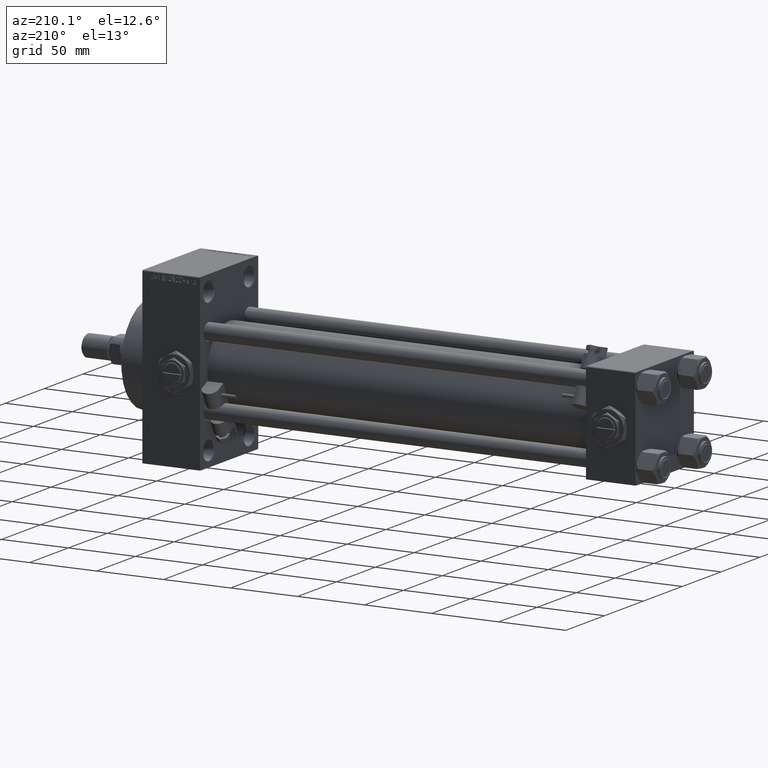
[diagram: clean part render]
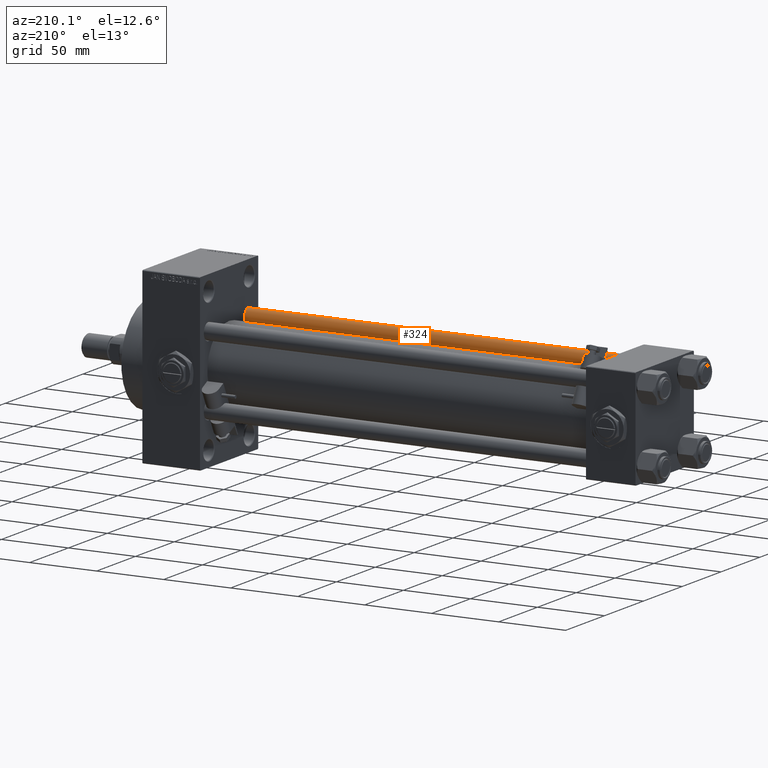
[diagram: same view with one face highlighted and labeled with its STEP entity id]
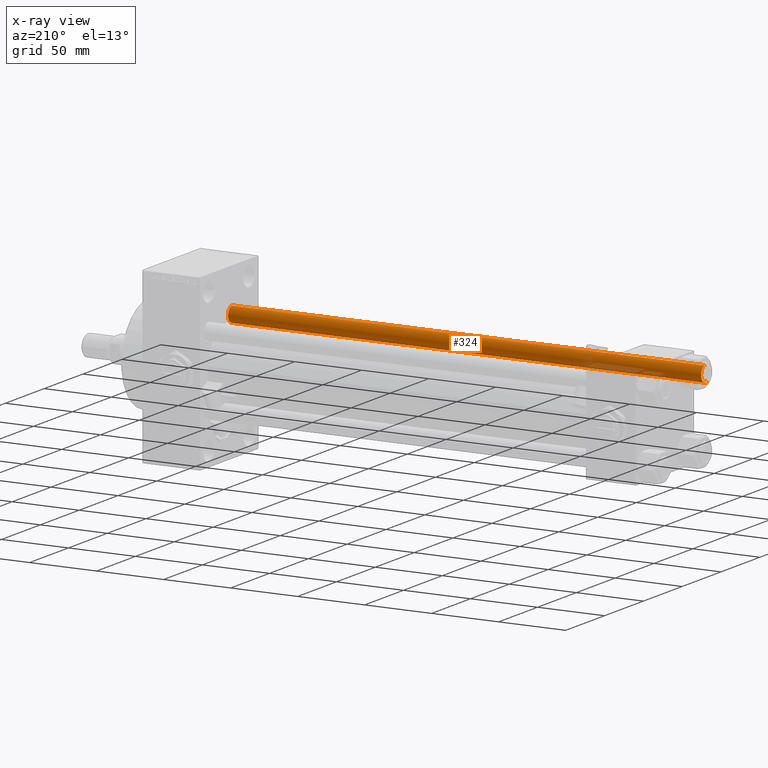
[diagram: x-ray of the same camera — body ghosted, the highlighted face saturated]
A machine part, auxiliary view. The second image highlights one B-rep face of the part: STEP entity #324.
The next image is the same camera in x-ray: the body ghosted, the highlighted face saturated — about 7% of this face is hidden behind the body in this view.
In plain terms, the highlighted cylindrical surface (edge-blend (fillet) strip) has radius 6 mm, axis along (1, 0, 0).
Its self-contained STEP definition (entity closure, byte-faithful):
#38 = VECTOR ( 'NONE', #30073, 1000.000000000000000 ) ;
#324 = ADVANCED_FACE ( 'NONE', ( #20445 ), #36435, .T. ) ;
#1281 = VERTEX_POINT ( 'NONE', #50637 ) ;
#1511 = AXIS2_PLACEMENT_3D ( 'NONE', #24073, #32833, #40567 ) ;
#1859 = CARTESIAN_POINT ( 'NONE',  ( -6.000000000000000888, 0.000000000000000000, 0.5000000000000559552 ) ) ;
#3008 = CIRCLE ( 'NONE', #22751, 6.000000000000000888 ) ;
#4679 = CIRCLE ( 'NONE', #11284, 6.000000000000000888 ) ;
#6380 = CARTESIAN_POINT ( 'NONE',  ( 0.000000000000000000, 0.000000000000000000, 353.5000000000000000 ) ) ;
#7407 = CARTESIAN_POINT ( 'NONE',  ( 6.000000000000000888, 7.347880794884120722E-16, 0.5000000000000559552 ) ) ;
#7541 = CARTESIAN_POINT ( 'NONE',  ( -6.000000000000000888, 0.000000000000000000, 353.5000000000000000 ) ) ;
#9308 = LINE ( 'NONE', #17320, #26511 ) ;
#11284 = AXIS2_PLACEMENT_3D ( 'NONE', #6380, #22132, #34003 ) ;
#12037 = CARTESIAN_POINT ( 'NONE',  ( 0.000000000000000000, 0.000000000000000000, 0.5000000000000559552 ) ) ;
#13214 = VERTEX_POINT ( 'NONE', #7407 ) ;
#13993 = EDGE_CURVE ( 'NONE', #24059, #13214, #3008, .T. ) ;
#15274 = ORIENTED_EDGE ( 'NONE', *, *, #29261, .T. ) ;
#17320 = CARTESIAN_POINT ( 'NONE',  ( -6.000000000000000888, 0.000000000000000000, 354.0000000000000000 ) ) ;
#20445 = FACE_OUTER_BOUND ( 'NONE', #27366, .T. ) ;
#22132 = DIRECTION ( 'NONE',  ( 0.000000000000000000, 0.000000000000000000, -1.000000000000000000 ) ) ;
#22751 = AXIS2_PLACEMENT_3D ( 'NONE', #12037, #39385, #27783 ) ;
#24059 = VERTEX_POINT ( 'NONE', #1859 ) ;
#24073 = CARTESIAN_POINT ( 'NONE',  ( 0.000000000000000000, 0.000000000000000000, 354.0000000000000000 ) ) ;
#26511 = VECTOR ( 'NONE', #33306, 1000.000000000000000 ) ;
#27322 = EDGE_CURVE ( 'NONE', #1281, #13214, #49656, .T. ) ;
#27366 = EDGE_LOOP ( 'NONE', ( #36985, #29061, #15274, #45134 ) ) ;
#27783 = DIRECTION ( 'NONE',  ( 1.000000000000000000, 0.000000000000000000, 0.000000000000000000 ) ) ;
#29061 = ORIENTED_EDGE ( 'NONE', *, *, #47005, .T. ) ;
#29261 = EDGE_CURVE ( 'NONE', #39156, #24059, #9308, .T. ) ;
#30073 = DIRECTION ( 'NONE',  ( -0.000000000000000000, -0.000000000000000000, -1.000000000000000000 ) ) ;
#32833 = DIRECTION ( 'NONE',  ( -0.000000000000000000, -0.000000000000000000, -1.000000000000000000 ) ) ;
#33306 = DIRECTION ( 'NONE',  ( -0.000000000000000000, -0.000000000000000000, -1.000000000000000000 ) ) ;
#34003 = DIRECTION ( 'NONE',  ( 1.000000000000000000, 0.000000000000000000, 0.000000000000000000 ) ) ;
#36435 = CYLINDRICAL_SURFACE ( 'NONE', #1511, 6.000000000000000888 ) ;
#36985 = ORIENTED_EDGE ( 'NONE', *, *, #27322, .F. ) ;
#39156 = VERTEX_POINT ( 'NONE', #7541 ) ;
#39385 = DIRECTION ( 'NONE',  ( -0.000000000000000000, -0.000000000000000000, 1.000000000000000000 ) ) ;
#40567 = DIRECTION ( 'NONE',  ( -1.000000000000000000, 0.000000000000000000, 0.000000000000000000 ) ) ;
#41927 = CARTESIAN_POINT ( 'NONE',  ( 6.000000000000000888, 7.347880794884120722E-16, 354.0000000000000000 ) ) ;
#45134 = ORIENTED_EDGE ( 'NONE', *, *, #13993, .T. ) ;
#47005 = EDGE_CURVE ( 'NONE', #1281, #39156, #4679, .T. ) ;
#49656 = LINE ( 'NONE', #41927, #38 ) ;
#50637 = CARTESIAN_POINT ( 'NONE',  ( 6.000000000000000888, 7.347880794884120722E-16, 353.5000000000000000 ) ) ;